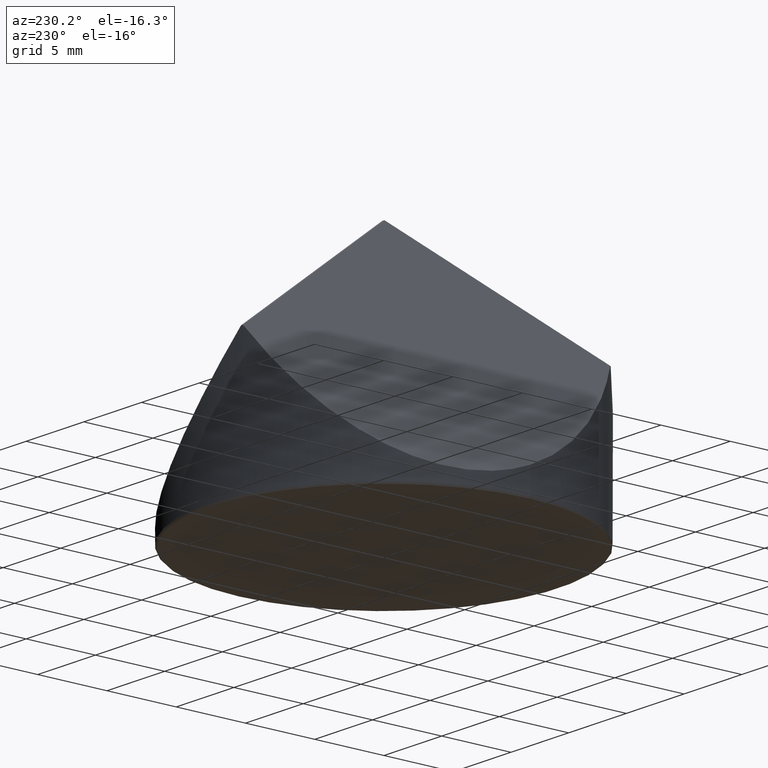
[diagram: clean part render]
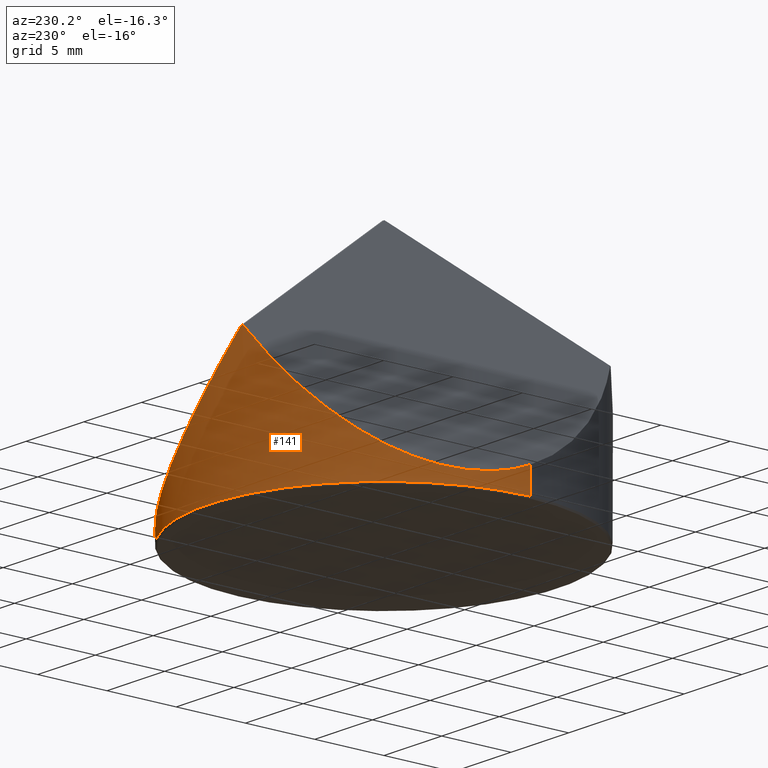
[diagram: same view with one face highlighted and labeled with its STEP entity id]
A machine part, auxiliary view. The second image highlights one B-rep face of the part: STEP entity #141.
In plain terms, the highlighted cylindrical surface (partial cylindrical patch) has radius 12.7 mm, axis along (-0, -0, -1).
Its self-contained STEP definition (entity closure, byte-faithful):
#4 = DIRECTION ( 'NONE',  ( -0.000000000000000000, -0.000000000000000000, -1.000000000000000000 ) ) ;
#8 = EDGE_CURVE ( 'NONE', #65, #29, #229, .T. ) ;
#29 = VERTEX_POINT ( 'NONE', #330 ) ;
#30 = CARTESIAN_POINT ( 'NONE',  ( -2.687820388331773280, 12.41231733239478707, 9.913536654948602589 ) ) ;
#32 = CARTESIAN_POINT ( 'NONE',  ( -12.69999999999999929, 0.000000000000000000, 1.908562075568193128 ) ) ;
#36 = DIRECTION ( 'NONE',  ( -1.000000000000000000, 0.000000000000000000, 0.000000000000000000 ) ) ;
#38 = VECTOR ( 'NONE', #289, 1000.000000000000000 ) ;
#50 = CARTESIAN_POINT ( 'NONE',  ( 12.69999999999999929, 1.555301434917138433E-15, 5.611920421393865155 ) ) ;
#55 = VERTEX_POINT ( 'NONE', #78 ) ;
#57 = ORIENTED_EDGE ( 'NONE', *, *, #62, .T. ) ;
#62 = EDGE_CURVE ( 'NONE', #337, #55, #178, .T. ) ;
#65 = VERTEX_POINT ( 'NONE', #304 ) ;
#68 = VECTOR ( 'NONE', #4, 1000.000000000000000 ) ;
#78 = CARTESIAN_POINT ( 'NONE',  ( -2.549438031107219338, 12.44147763433042364, 9.913536654948595483 ) ) ;
#86 = EDGE_CURVE ( 'NONE', #367, #55, #286, .T. ) ;
#102 = ORIENTED_EDGE ( 'NONE', *, *, #86, .F. ) ;
#113 = FACE_OUTER_BOUND ( 'NONE', #216, .T. ) ;
#117 = DIRECTION ( 'NONE',  ( -0.000000000000000000, -0.000000000000000000, -1.000000000000000000 ) ) ;
#119 = AXIS2_PLACEMENT_3D ( 'NONE', #127, #269, #131 ) ;
#127 = CARTESIAN_POINT ( 'NONE',  ( 0.000000000000000000, 0.000000000000000000, 0.08000000000000020983 ) ) ;
#131 = DIRECTION ( 'NONE',  ( -1.000000000000000000, 0.000000000000000000, 0.000000000000000000 ) ) ;
#138 = ORIENTED_EDGE ( 'NONE', *, *, #243, .T. ) ;
#141 = ADVANCED_FACE ( 'NONE', ( #113 ), #258, .T. ) ;
#143 = CARTESIAN_POINT ( 'NONE',  ( -12.69999999999999929, 0.000000000000000000, 1.908562075568193128 ) ) ;
#146 = LINE ( 'NONE', #177, #68 ) ;
#148 =( BOUNDED_CURVE ( )  B_SPLINE_CURVE ( 3, ( #30, #287, #342, #32 ),
 .UNSPECIFIED., .F., .F. ) 
 B_SPLINE_CURVE_WITH_KNOTS ( ( 4, 4 ),
 ( 5.241555554680859430, 6.599099828102190202 ),
 .UNSPECIFIED. ) 
 CURVE ( )  GEOMETRIC_REPRESENTATION_ITEM ( )  RATIONAL_B_SPLINE_CURVE ( ( 1.000000000000000000, 0.8522294695164696066, 0.8522294695164696066, 1.000000000000000000 ) ) 
 REPRESENTATION_ITEM ( '' )  );
#168 = CARTESIAN_POINT ( 'NONE',  ( 12.70000000000000107, 8.691711861742190237, -2.596944323644162278 ) ) ;
#171 = CARTESIAN_POINT ( 'NONE',  ( 5.965344546208515730, 14.18627927021635138, -0.6972085321788039636 ) ) ;
#177 = CARTESIAN_POINT ( 'NONE',  ( -12.69999999999999929, 0.000000000000000000, 10.00000000000000000 ) ) ;
#178 =( BOUNDED_CURVE ( )  B_SPLINE_CURVE ( 3, ( #202, #331, #307, #336 ),
 .UNSPECIFIED., .F., .F. ) 
 B_SPLINE_CURVE_WITH_KNOTS ( ( 4, 4 ),
 ( 6.277617508481720066, 6.288753105877466609 ),
 .UNSPECIFIED. ) 
 CURVE ( )  GEOMETRIC_REPRESENTATION_ITEM ( )  RATIONAL_B_SPLINE_CURVE ( ( 1.000000000000000000, 0.9999896665659149253, 0.9999896665659149253, 1.000000000000000000 ) ) 
 REPRESENTATION_ITEM ( '' )  );
#186 = CARTESIAN_POINT ( 'NONE',  ( 0.000000000000000000, 0.000000000000000000, 10.00000000000000000 ) ) ;
#187 = ORIENTED_EDGE ( 'NONE', *, *, #223, .F. ) ;
#190 = CARTESIAN_POINT ( 'NONE',  ( -2.687820388331773280, 12.41231733239478707, 9.913536654948602589 ) ) ;
#192 = AXIS2_PLACEMENT_3D ( 'NONE', #186, #117, #36 ) ;
#202 = CARTESIAN_POINT ( 'NONE',  ( -2.687820388331773280, 12.41231733239478707, 9.913536654948602589 ) ) ;
#216 = EDGE_LOOP ( 'NONE', ( #102, #138, #343, #363, #187, #57 ) ) ;
#223 = EDGE_CURVE ( 'NONE', #337, #226, #148, .T. ) ;
#226 = VERTEX_POINT ( 'NONE', #143 ) ;
#229 = CIRCLE ( 'NONE', #119, 12.69999999999999929 ) ;
#239 = CARTESIAN_POINT ( 'NONE',  ( 12.69999999999999929, 1.555301434917138433E-15, 5.611920421393865155 ) ) ;
#243 = EDGE_CURVE ( 'NONE', #367, #65, #255, .T. ) ;
#255 = LINE ( 'NONE', #366, #38 ) ;
#258 = CYLINDRICAL_SURFACE ( 'NONE', #192, 12.69999999999999929 ) ;
#269 = DIRECTION ( 'NONE',  ( 0.000000000000000000, 0.000000000000000000, 1.000000000000000000 ) ) ;
#282 = EDGE_CURVE ( 'NONE', #226, #29, #146, .T. ) ;
#286 =( BOUNDED_CURVE ( )  B_SPLINE_CURVE ( 3, ( #50, #168, #171, #312 ),
 .UNSPECIFIED., .F., .F. ) 
 B_SPLINE_CURVE_WITH_KNOTS ( ( 4, 4 ),
 ( 5.551902276905597233, 7.324815059678313034 ),
 .UNSPECIFIED. ) 
 CURVE ( )  GEOMETRIC_REPRESENTATION_ITEM ( )  RATIONAL_B_SPLINE_CURVE ( ( 1.000000000000000000, 0.7547744714256109377, 0.7547744714256109377, 1.000000000000000000 ) ) 
 REPRESENTATION_ITEM ( '' )  );
#287 = CARTESIAN_POINT ( 'NONE',  ( -8.783926544123202618, 11.09223841592949711, 2.298992025420364183 ) ) ;
#289 = DIRECTION ( 'NONE',  ( -0.000000000000000000, -0.000000000000000000, -1.000000000000000000 ) ) ;
#304 = CARTESIAN_POINT ( 'NONE',  ( 12.69999999999999929, 1.555301434917138433E-15, 0.08000000000000020983 ) ) ;
#307 = CARTESIAN_POINT ( 'NONE',  ( -2.595619365028784653, 12.43201441360316650, 9.913351060699755024 ) ) ;
#312 = CARTESIAN_POINT ( 'NONE',  ( -2.549438031107219338, 12.44147763433042364, 9.913536654948595483 ) ) ;
#330 = CARTESIAN_POINT ( 'NONE',  ( -12.69999999999999929, 0.000000000000000000, 0.08000000000000020983 ) ) ;
#331 = CARTESIAN_POINT ( 'NONE',  ( -2.641747294096887355, 12.42229421251489896, 9.913351060699753248 ) ) ;
#336 = CARTESIAN_POINT ( 'NONE',  ( -2.549438031107219338, 12.44147763433042364, 9.913536654948595483 ) ) ;
#337 = VERTEX_POINT ( 'NONE', #190 ) ;
#342 = CARTESIAN_POINT ( 'NONE',  ( -12.69999999999999929, 6.237396781380374122, -0.8320013927107907659 ) ) ;
#343 = ORIENTED_EDGE ( 'NONE', *, *, #8, .T. ) ;
#363 = ORIENTED_EDGE ( 'NONE', *, *, #282, .F. ) ;
#366 = CARTESIAN_POINT ( 'NONE',  ( 12.69999999999999929, 1.555301434917138433E-15, 10.00000000000000000 ) ) ;
#367 = VERTEX_POINT ( 'NONE', #239 ) ;